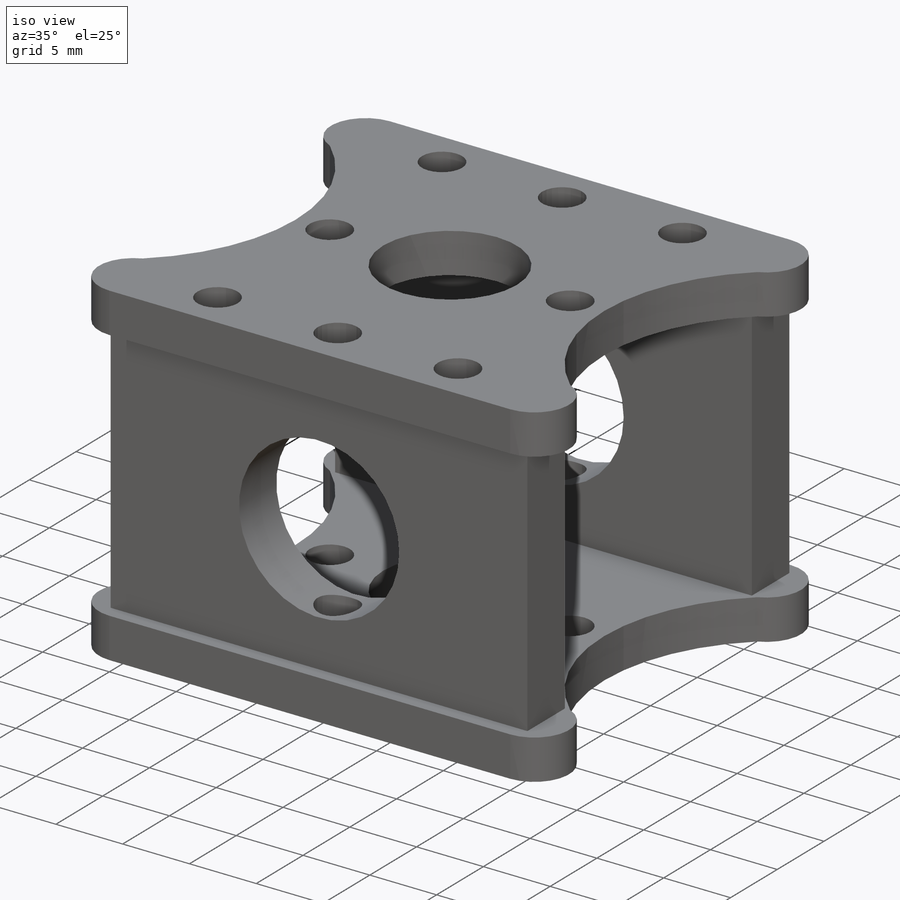
[diagram: iso view]
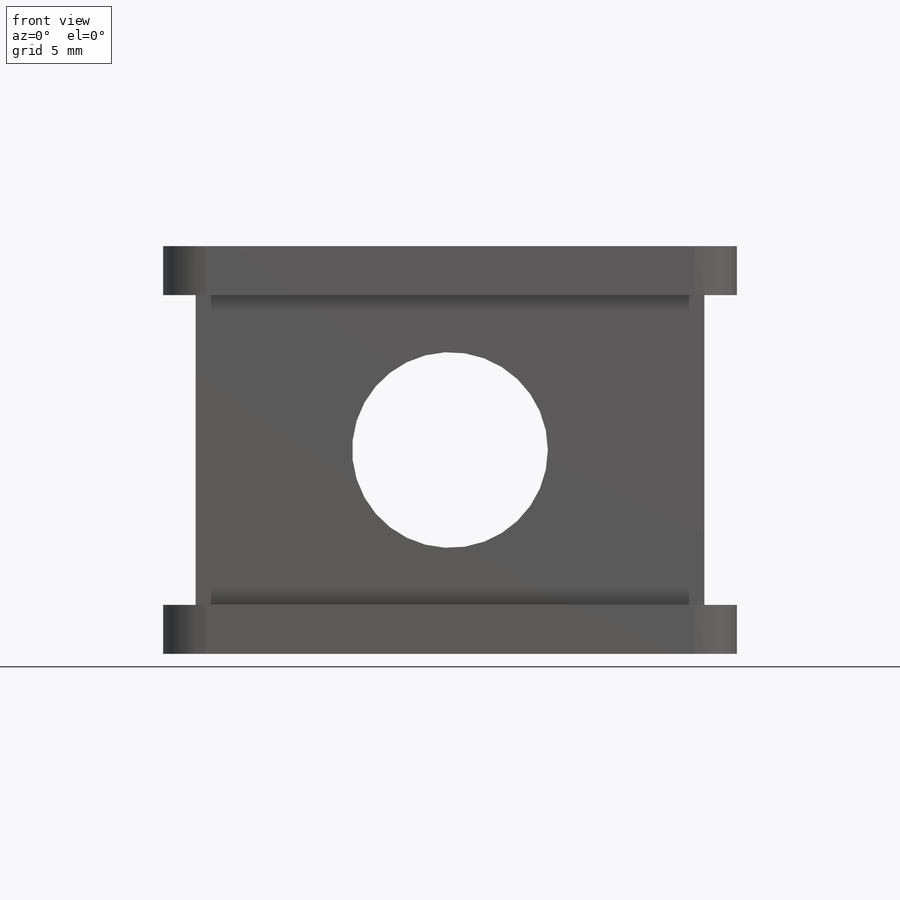
[diagram: front view]
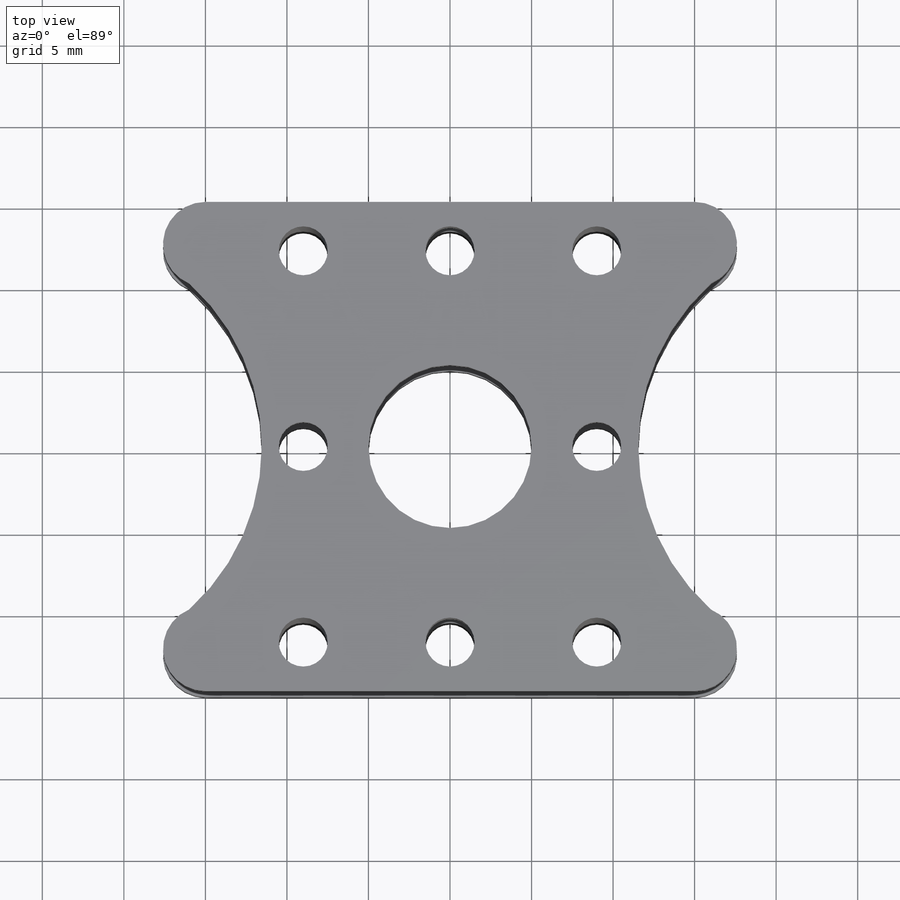
[diagram: top view]
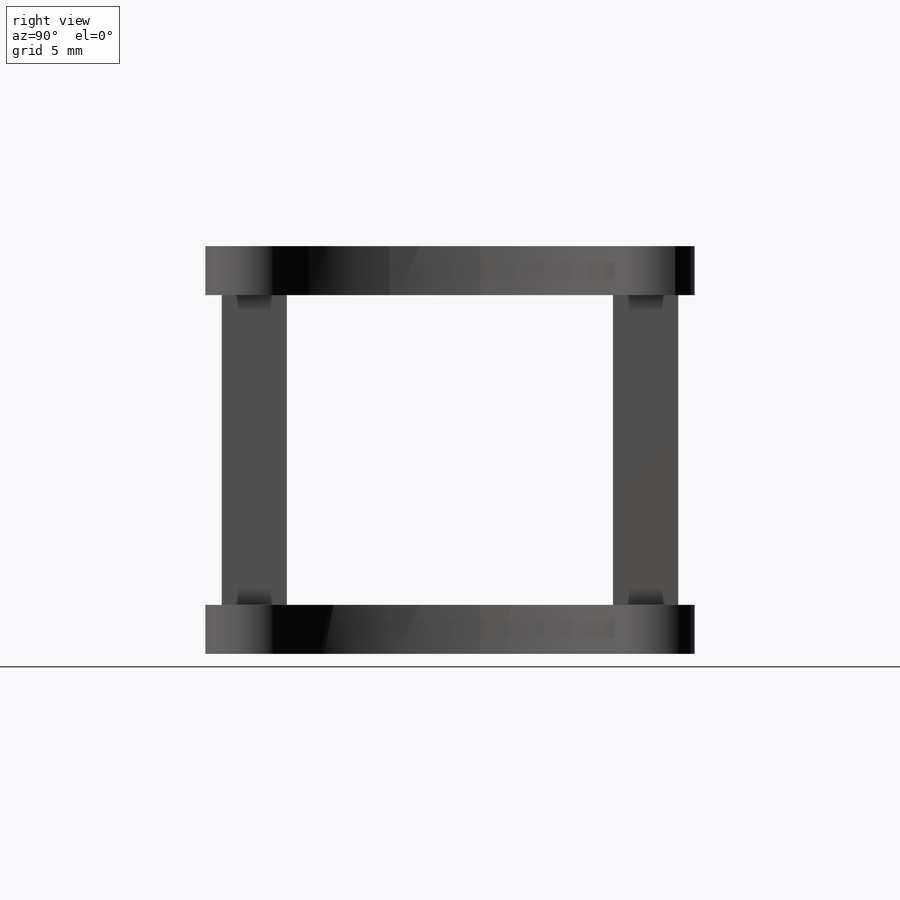
[diagram: right view]
SOLIDWORKS PART (.sldprt)
format: sldprt  version: not decoded by parser v0  size: 288,768 bytes
history: native  units: mm
features: plane x3, sketch x3, cut_extrude x2, material x1, extrude x1 (+8 scaffold rows collapsed)
feature tree (18):
  scaffold x8  (default folders/planes/origin — collapsed)
  material  "Matériau <non spécifié>"
  plane  "Plan de face"
  plane  "Plan de dessus"
  plane  "Plan de droite"
  sketch  "Esquisse1"  dims[c1.D11=~1.342217mm c1.D13=~1.329896mm c1.D17=7.0mm c1.D23=~1.608606mm c1.D1=30.0mm c1.D2=32.0mm c1.D3=32.0mm c1.D4=30.0mm c1.D5=5.0mm c1.D6=15.0mm c1.D7=5.0mm c1.D8=15.0mm c1.D9=16.0mm c1.D10=16.0mm c2.D8=30.0mm c2.D11=9.0mm c2.D12=9.0mm c2.D13=3.0mm c2.D14=3.0mm c2.D15=3.0mm c2.D16=3.0mm c2.D17=~5.09902mm c2.D5=10.0mm c3.D17=15.0mm c3.D18=15.0mm c4.D17=25.0mm c4.D18=25.0mm c4.D19=9.0mm c4.D20=18.0mm c4.D21=9.0mm c4.D22=18.0mm c4.D5=5.0mm]
  extrude  "Boss.-Extru.1"  Depth=25mm
  sketch  "Esquisse2"  dims[D1=3.0mm D2=3.0mm D3=20.0mm D4=10.0mm D5=4.0mm D6=4.0mm]
  cut_extrude  "Enlèv. mat.-Extru.1"  Depth=25mm
  sketch  "Esquisse3"  dims[D6=12.0mm D1=2.0mm D2=2.0mm D3=19.0mm D4=19.0mm D5=12.5mm D7=15.0mm]
  cut_extrude  "Enlèv. mat.-Extru.2"  Depth=30mm
decode coverage: 6 of 6 modeling features carry decoded parameters
note: ~ marks probable driven/reference dimensions
note: suppression state not decoded; provenance and decode notes live in map.json
